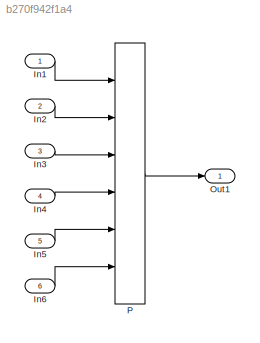
MODEL slx_b270f942f1a4
KIND model
CONFIG AbsTol = auto
CONFIG EnableMultiTasking = off
CONFIG FixedStep = auto
CONFIG MaxStep = auto
CONFIG MinStep = auto
CONFIG RelTol = 1e-3
CONFIG SampleTimeConstraint = Unconstrained
CONFIG Solver = FixedStepDiscrete
CONFIG SolverName = FixedStepDiscrete
CONFIG StartTime = 0.0
CONFIG StopTime = 10.0
BLOCK [Inport] In1
  IconDisplay = Port number
  OutMax = 2
  OutMin = 0
  PortDimensions = 1
BLOCK [Inport] In2
  IconDisplay = Port number
  OutMax = 1.5
  OutMin = -0.5
  Port = 2
BLOCK [Inport] In3
  IconDisplay = Port number
  OutMax = 5
  OutMin = 0
  Port = 3
BLOCK [Inport] In4
  IconDisplay = Port number
  OutMax = 1.5
  OutMin = -0.5
  Port = 4
BLOCK [Inport] In5
  IconDisplay = Port number
  OutMax = 3
  OutMin = 0
  Port = 5
BLOCK [Inport] In6
  IconDisplay = Port number
  Port = 6
  PortDimensions = [2 5 3]
BLOCK [Outport] Out1
  IconDisplay = Port number
BLOCK [Interpolation_n-D] P
  ExtrapMethod = Clip
  InputPortMap = u0,u1,u2,u3,u4,p2
  IntermediateResultsDataTypeStr = int32
  InternalRulePriority = Speed
  NumSelectionDims = 1
  NumberOfTableDimensions = 3
  OutDataTypeStr = int16
  Ports = [6, 1]
  RndMeth = Round
  TableSource = Input port
LINE In1:1 -> P:1
LINE In2:1 -> P:2
LINE In3:1 -> P:3
LINE In4:1 -> P:4
LINE In5:1 -> P:5
LINE In6:1 -> P:6
LINE P:1 -> Out1:1
